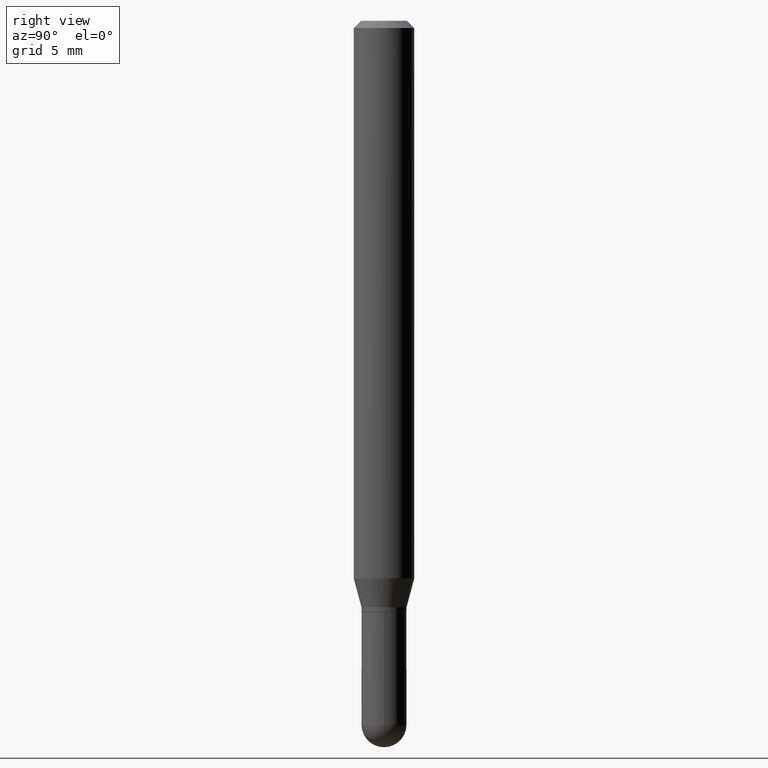
[diagram: clean part render]
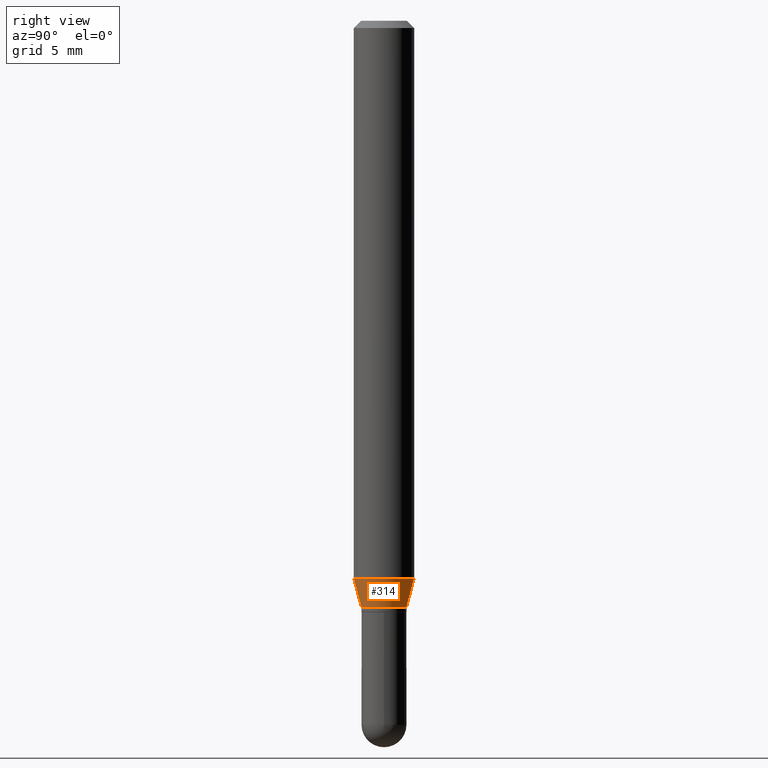
[diagram: same view with one face highlighted and labeled with its STEP entity id]
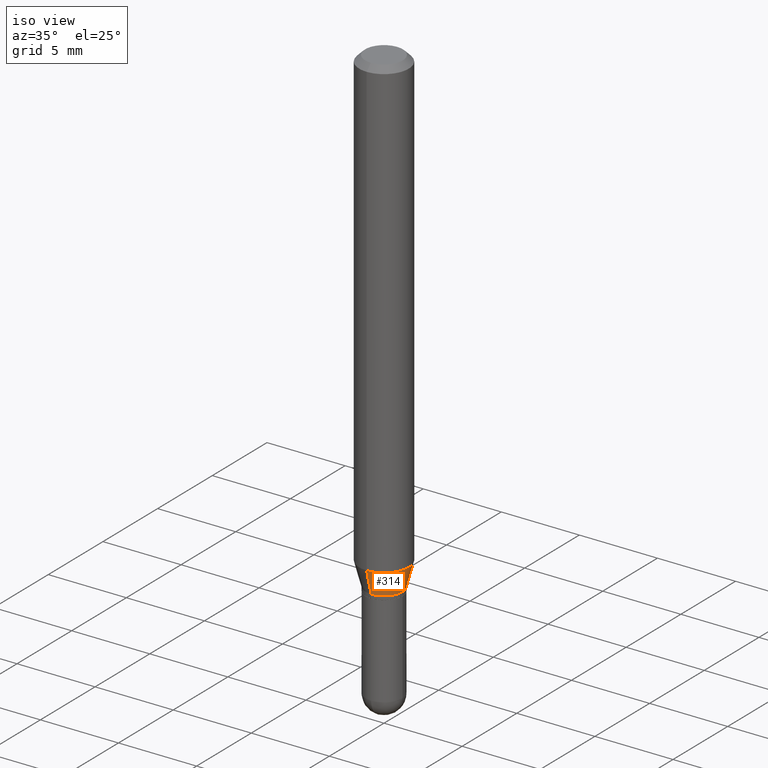
[diagram: same view with one face highlighted and labeled with its STEP entity id]
A machine part, right view. The second image highlights one B-rep face of the part: STEP entity #314.
A second angle (iso view) of the same face is appended — the face is thin or edge-on in the first view.
In plain terms, the highlighted conical surface has half-angle 15 deg.
Its self-contained STEP definition (entity closure, byte-faithful):
#1 = VERTEX_POINT ( 'NONE', #377 ) ;
#6 = CARTESIAN_POINT ( 'NONE',  ( 2.815349723061568800E-29, -4.019822575914692345E-15, -1.151287187078898322 ) ) ;
#17 = CARTESIAN_POINT ( 'NONE',  ( -3.247077645123822595E-16, -0.04650000000000429484, -1.210999999999999854 ) ) ;
#30 = VERTEX_POINT ( 'NONE', #307 ) ;
#61 = CARTESIAN_POINT ( 'NONE',  ( 3.304023721284766101E-16, 0.04649999999999584327, -1.211000000000000076 ) ) ;
#100 = FACE_OUTER_BOUND ( 'NONE', #173, .T. ) ;
#111 = ORIENTED_EDGE ( 'NONE', *, *, #328, .F. ) ;
#123 = CONICAL_SURFACE ( 'NONE', #504, 0.04650000000000006906, 0.2617993877991501850 ) ;
#140 = DIRECTION ( 'NONE',  ( -6.982962677686266711E-15, -1.000000000000000000, 2.937470960929311090E-15 ) ) ;
#143 = DIRECTION ( 'NONE',  ( -2.445393082333184106E-29, 3.491589779709075635E-15, 1.000000000000000000 ) ) ;
#146 = CIRCLE ( 'NONE', #286, 0.04650000000000006906 ) ;
#154 = VECTOR ( 'NONE', #219, 39.37007874015748143 ) ;
#168 = DIRECTION ( 'NONE',  ( -6.982962677686265922E-15, -1.000000000000000000, 4.370956789862821150E-15 ) ) ;
#173 = EDGE_LOOP ( 'NONE', ( #500, #304, #466, #111 ) ) ;
#179 = DIRECTION ( 'NONE',  ( -1.807323732225329350E-15, -0.2588190451025180194, 0.9659258262890689783 ) ) ;
#180 = EDGE_CURVE ( 'NONE', #459, #1, #491, .T. ) ;
#219 = DIRECTION ( 'NONE',  ( 1.839019923739599526E-15, 0.2588190451025248473, 0.9659258262890670910 ) ) ;
#234 = CARTESIAN_POINT ( 'NONE',  ( 2.961371022705485983E-29, -4.228315223227690775E-15, -1.211000000000000076 ) ) ;
#249 = VECTOR ( 'NONE', #179, 39.37007874015749564 ) ;
#257 = DIRECTION ( 'NONE',  ( -2.445393082333184106E-29, 3.491589779709075635E-15, 1.000000000000000000 ) ) ;
#286 = AXIS2_PLACEMENT_3D ( 'NONE', #234, #143, #432 ) ;
#304 = ORIENTED_EDGE ( 'NONE', *, *, #325, .T. ) ;
#307 = CARTESIAN_POINT ( 'NONE',  ( 3.872457909892837387E-16, 0.04649999999999584327, -1.211000000000000076 ) ) ;
#314 = ADVANCED_FACE ( 'NONE', ( #100 ), #123, .T. ) ;
#315 = DIRECTION ( 'NONE',  ( -2.445393082333184106E-29, 3.491589779709075635E-15, 1.000000000000000000 ) ) ;
#325 = EDGE_CURVE ( 'NONE', #30, #1, #493, .T. ) ;
#328 = EDGE_CURVE ( 'NONE', #375, #459, #371, .T. ) ;
#331 = CARTESIAN_POINT ( 'NONE',  ( 2.961371022705485983E-29, -4.228315223227690775E-15, -1.211000000000000076 ) ) ;
#371 = LINE ( 'NONE', #17, #249 ) ;
#375 = VERTEX_POINT ( 'NONE', #421 ) ;
#377 = CARTESIAN_POINT ( 'NONE',  ( 4.440892098500906207E-16, 0.06249999999999597544, -1.151287187078898766 ) ) ;
#379 = CARTESIAN_POINT ( 'NONE',  ( -4.364351673553635169E-16, -0.06250000000000402456, -1.151287187078898100 ) ) ;
#414 = EDGE_CURVE ( 'NONE', #375, #30, #146, .T. ) ;
#421 = CARTESIAN_POINT ( 'NONE',  ( -3.247077645123822595E-16, -0.04650000000000429484, -1.210999999999999854 ) ) ;
#432 = DIRECTION ( 'NONE',  ( -6.982962677686266711E-15, -1.000000000000000000, 2.937470960929311090E-15 ) ) ;
#455 = AXIS2_PLACEMENT_3D ( 'NONE', #6, #315, #168 ) ;
#459 = VERTEX_POINT ( 'NONE', #379 ) ;
#466 = ORIENTED_EDGE ( 'NONE', *, *, #180, .F. ) ;
#491 = CIRCLE ( 'NONE', #455, 0.06250000000000000000 ) ;
#493 = LINE ( 'NONE', #61, #154 ) ;
#500 = ORIENTED_EDGE ( 'NONE', *, *, #414, .T. ) ;
#504 = AXIS2_PLACEMENT_3D ( 'NONE', #331, #257, #140 ) ;